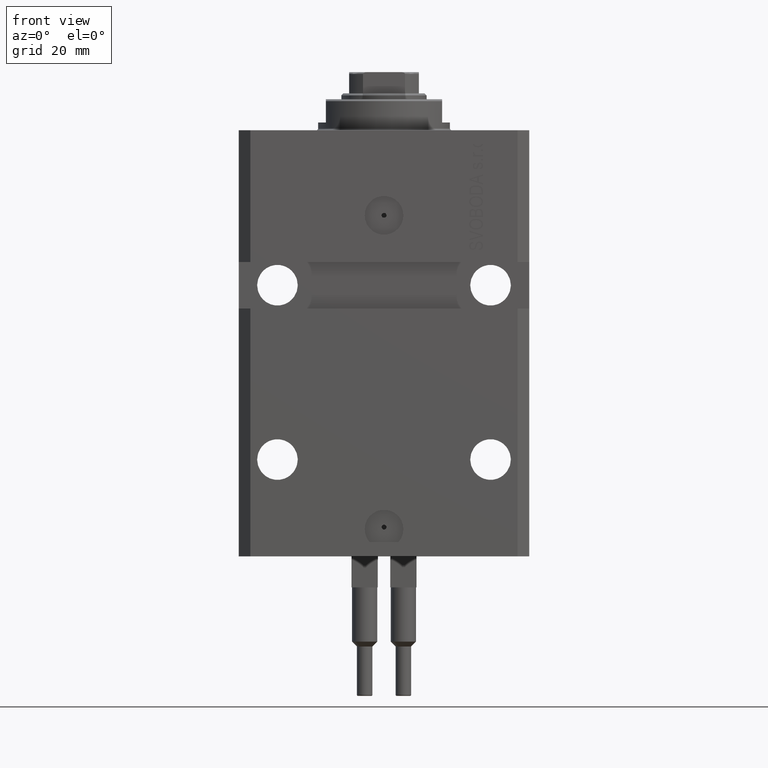
[diagram: clean part render]
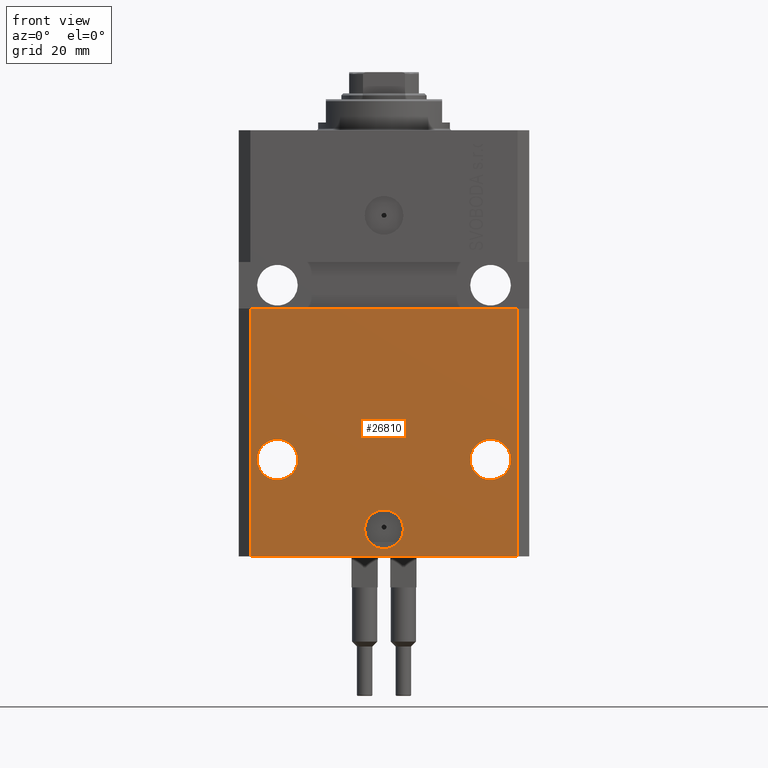
[diagram: same view with one face highlighted and labeled with its STEP entity id]
A machine part, front view. The second image highlights one B-rep face of the part: STEP entity #26810.
In plain terms, the highlighted planar face has unit normal (0, -1, 0).
Its self-contained STEP definition (entity closure, byte-faithful):
#157 = CARTESIAN_POINT ( 'NONE',  ( 34.49999999999999289, -27.49999999999999645, -110.0000000000000000 ) ) ;
#1479 = CARTESIAN_POINT ( 'NONE',  ( -34.49999999999998579, -27.49999999999999645, -110.0000000000000000 ) ) ;
#1645 = AXIS2_PLACEMENT_3D ( 'NONE', #40422, #30043, #14064 ) ;
#2460 = ORIENTED_EDGE ( 'NONE', *, *, #12690, .T. ) ;
#2898 = CARTESIAN_POINT ( 'NONE',  ( -22.25000000000002132, -27.50000000000000000, -84.99999999999998579 ) ) ;
#3712 = CARTESIAN_POINT ( 'NONE',  ( -37.50000000000000000, -27.50000000000000000, -46.00000000000000000 ) ) ;
#4365 = PLANE ( 'NONE',  #7247 ) ;
#4838 = CARTESIAN_POINT ( 'NONE',  ( -34.49999999999998579, -27.49999999999999645, -110.0000000000000000 ) ) ;
#5613 = EDGE_CURVE ( 'NONE', #41269, #6492, #13414, .T. ) ;
#5645 = LINE ( 'NONE', #1479, #28455 ) ;
#6086 = CIRCLE ( 'NONE', #48575, 5.249999999999994671 ) ;
#6492 = VERTEX_POINT ( 'NONE', #38676 ) ;
#6932 = LINE ( 'NONE', #3712, #46598 ) ;
#7247 = AXIS2_PLACEMENT_3D ( 'NONE', #23094, #38107, #41094 ) ;
#10674 = CARTESIAN_POINT ( 'NONE',  ( 34.49999999999999289, -27.49999999999999289, -46.00000000000000711 ) ) ;
#10900 = LINE ( 'NONE', #32800, #45434 ) ;
#11288 = FACE_BOUND ( 'NONE', #16542, .T. ) ;
#11789 = ORIENTED_EDGE ( 'NONE', *, *, #13077, .F. ) ;
#12018 = FACE_BOUND ( 'NONE', #32527, .T. ) ;
#12350 = DIRECTION ( 'NONE',  ( 1.176083712526788232E-16, -1.000000000000000000, 0.000000000000000000 ) ) ;
#12690 = EDGE_CURVE ( 'NONE', #31363, #25899, #10900, .T. ) ;
#13077 = EDGE_CURVE ( 'NONE', #16012, #22413, #6086, .T. ) ;
#13376 = CARTESIAN_POINT ( 'NONE',  ( 27.50000000000001421, -27.49999999999999289, -84.99999999999998579 ) ) ;
#13402 = VERTEX_POINT ( 'NONE', #46518 ) ;
#13414 = CIRCLE ( 'NONE', #1645, 5.249999999999994671 ) ;
#13739 = ORIENTED_EDGE ( 'NONE', *, *, #26463, .T. ) ;
#14064 = DIRECTION ( 'NONE',  ( 1.000000000000000000, 0.000000000000000000, 0.000000000000000000 ) ) ;
#14303 = ORIENTED_EDGE ( 'NONE', *, *, #29948, .F. ) ;
#15439 = DIRECTION ( 'NONE',  ( 0.000000000000000000, 0.000000000000000000, 1.000000000000000000 ) ) ;
#16012 = VERTEX_POINT ( 'NONE', #36633 ) ;
#16542 = EDGE_LOOP ( 'NONE', ( #16979, #11789 ) ) ;
#16979 = ORIENTED_EDGE ( 'NONE', *, *, #23403, .F. ) ;
#17222 = VERTEX_POINT ( 'NONE', #45309 ) ;
#17470 = EDGE_CURVE ( 'NONE', #20998, #13402, #38817, .T. ) ;
#18141 = AXIS2_PLACEMENT_3D ( 'NONE', #45616, #12350, #26859 ) ;
#18164 = EDGE_LOOP ( 'NONE', ( #37091, #47230 ) ) ;
#19076 = DIRECTION ( 'NONE',  ( 1.176083712526788232E-16, -1.000000000000000000, 0.000000000000000000 ) ) ;
#19374 = AXIS2_PLACEMENT_3D ( 'NONE', #32301, #47359, #20750 ) ;
#20668 = DIRECTION ( 'NONE',  ( -1.000000000000000000, 0.000000000000000000, 0.000000000000000000 ) ) ;
#20750 = DIRECTION ( 'NONE',  ( 1.000000000000000000, 0.000000000000000000, 0.000000000000000000 ) ) ;
#20998 = VERTEX_POINT ( 'NONE', #37488 ) ;
#22413 = VERTEX_POINT ( 'NONE', #2898 ) ;
#23094 = CARTESIAN_POINT ( 'NONE',  ( -34.49999999999998579, -27.49999999999999645, -110.0000000000000000 ) ) ;
#23403 = EDGE_CURVE ( 'NONE', #22413, #16012, #43328, .T. ) ;
#23615 = DIRECTION ( 'NONE',  ( 1.176083712526788232E-16, -1.000000000000000000, 0.000000000000000000 ) ) ;
#24889 = ORIENTED_EDGE ( 'NONE', *, *, #46665, .F. ) ;
#25899 = VERTEX_POINT ( 'NONE', #10674 ) ;
#26136 = CARTESIAN_POINT ( 'NONE',  ( 32.75000000000000711, -27.49999999999999289, -84.99999999999998579 ) ) ;
#26463 = EDGE_CURVE ( 'NONE', #20998, #31363, #5645, .T. ) ;
#26500 = VECTOR ( 'NONE', #15439, 1000.000000000000000 ) ;
#26508 = FACE_OUTER_BOUND ( 'NONE', #46680, .T. ) ;
#26810 = ADVANCED_FACE ( 'NONE', ( #12018, #37375, #11288, #26508 ), #4365, .T. ) ;
#26859 = DIRECTION ( 'NONE',  ( -1.000000000000000000, 0.000000000000000000, 0.000000000000000000 ) ) ;
#28371 = DIRECTION ( 'NONE',  ( 1.000000000000000000, 0.000000000000000000, 0.000000000000000000 ) ) ;
#28439 = ORIENTED_EDGE ( 'NONE', *, *, #38907, .F. ) ;
#28455 = VECTOR ( 'NONE', #38659, 1000.000000000000000 ) ;
#29948 = EDGE_CURVE ( 'NONE', #13402, #25899, #6932, .T. ) ;
#30043 = DIRECTION ( 'NONE',  ( 1.176083712526788232E-16, -1.000000000000000000, 0.000000000000000000 ) ) ;
#31363 = VERTEX_POINT ( 'NONE', #157 ) ;
#32076 = DIRECTION ( 'NONE',  ( 1.176083712526788232E-16, -1.000000000000000000, 0.000000000000000000 ) ) ;
#32301 = CARTESIAN_POINT ( 'NONE',  ( 0.000000000000000000, -27.49999999999999645, -103.0000000000000000 ) ) ;
#32527 = EDGE_LOOP ( 'NONE', ( #28439, #24889 ) ) ;
#32800 = CARTESIAN_POINT ( 'NONE',  ( 34.49999999999999289, -27.49999999999999645, -110.0000000000000000 ) ) ;
#33111 = DIRECTION ( 'NONE',  ( 1.000000000000000000, 0.000000000000000000, 0.000000000000000000 ) ) ;
#33277 = DIRECTION ( 'NONE',  ( 1.000000000000000000, 9.251858538542972814E-17, -9.251858538542972814E-17 ) ) ;
#34485 = AXIS2_PLACEMENT_3D ( 'NONE', #44958, #19076, #33111 ) ;
#36633 = CARTESIAN_POINT ( 'NONE',  ( -32.75000000000000711, -27.50000000000000000, -84.99999999999998579 ) ) ;
#36662 = AXIS2_PLACEMENT_3D ( 'NONE', #13376, #32076, #28371 ) ;
#37091 = ORIENTED_EDGE ( 'NONE', *, *, #5613, .F. ) ;
#37375 = FACE_BOUND ( 'NONE', #18164, .T. ) ;
#37488 = CARTESIAN_POINT ( 'NONE',  ( -34.49999999999998579, -27.49999999999999645, -110.0000000000000000 ) ) ;
#38107 = DIRECTION ( 'NONE',  ( 0.000000000000000000, -1.000000000000000000, 0.000000000000000000 ) ) ;
#38134 = EDGE_CURVE ( 'NONE', #6492, #41269, #46102, .T. ) ;
#38421 = ORIENTED_EDGE ( 'NONE', *, *, #17470, .F. ) ;
#38659 = DIRECTION ( 'NONE',  ( 1.000000000000000000, 0.000000000000000000, 0.000000000000000000 ) ) ;
#38676 = CARTESIAN_POINT ( 'NONE',  ( 22.25000000000002132, -27.49999999999999289, -84.99999999999998579 ) ) ;
#38817 = LINE ( 'NONE', #4838, #26500 ) ;
#38907 = EDGE_CURVE ( 'NONE', #17222, #45213, #40603, .T. ) ;
#40422 = CARTESIAN_POINT ( 'NONE',  ( 27.50000000000001421, -27.49999999999999289, -84.99999999999998579 ) ) ;
#40603 = CIRCLE ( 'NONE', #19374, 5.000000000000006217 ) ;
#41094 = DIRECTION ( 'NONE',  ( 0.000000000000000000, -0.000000000000000000, -1.000000000000000000 ) ) ;
#41269 = VERTEX_POINT ( 'NONE', #26136 ) ;
#42340 = CARTESIAN_POINT ( 'NONE',  ( -27.50000000000001421, -27.50000000000000000, -84.99999999999998579 ) ) ;
#43148 = CIRCLE ( 'NONE', #34485, 5.000000000000006217 ) ;
#43328 = CIRCLE ( 'NONE', #18141, 5.249999999999994671 ) ;
#44279 = CARTESIAN_POINT ( 'NONE',  ( -5.000000000000006217, -27.49999999999999645, -103.0000000000000000 ) ) ;
#44958 = CARTESIAN_POINT ( 'NONE',  ( 0.000000000000000000, -27.49999999999999645, -103.0000000000000000 ) ) ;
#45213 = VERTEX_POINT ( 'NONE', #44279 ) ;
#45309 = CARTESIAN_POINT ( 'NONE',  ( 5.000000000000006217, -27.49999999999999645, -103.0000000000000000 ) ) ;
#45434 = VECTOR ( 'NONE', #47615, 1000.000000000000000 ) ;
#45616 = CARTESIAN_POINT ( 'NONE',  ( -27.50000000000001421, -27.50000000000000000, -84.99999999999998579 ) ) ;
#46102 = CIRCLE ( 'NONE', #36662, 5.249999999999994671 ) ;
#46518 = CARTESIAN_POINT ( 'NONE',  ( -34.49999999999998579, -27.50000000000000000, -46.00000000000000000 ) ) ;
#46598 = VECTOR ( 'NONE', #33277, 1000.000000000000000 ) ;
#46665 = EDGE_CURVE ( 'NONE', #45213, #17222, #43148, .T. ) ;
#46680 = EDGE_LOOP ( 'NONE', ( #14303, #38421, #13739, #2460 ) ) ;
#47230 = ORIENTED_EDGE ( 'NONE', *, *, #38134, .F. ) ;
#47359 = DIRECTION ( 'NONE',  ( 1.176083712526788232E-16, -1.000000000000000000, 0.000000000000000000 ) ) ;
#47615 = DIRECTION ( 'NONE',  ( 0.000000000000000000, 0.000000000000000000, 1.000000000000000000 ) ) ;
#48575 = AXIS2_PLACEMENT_3D ( 'NONE', #42340, #23615, #20668 ) ;